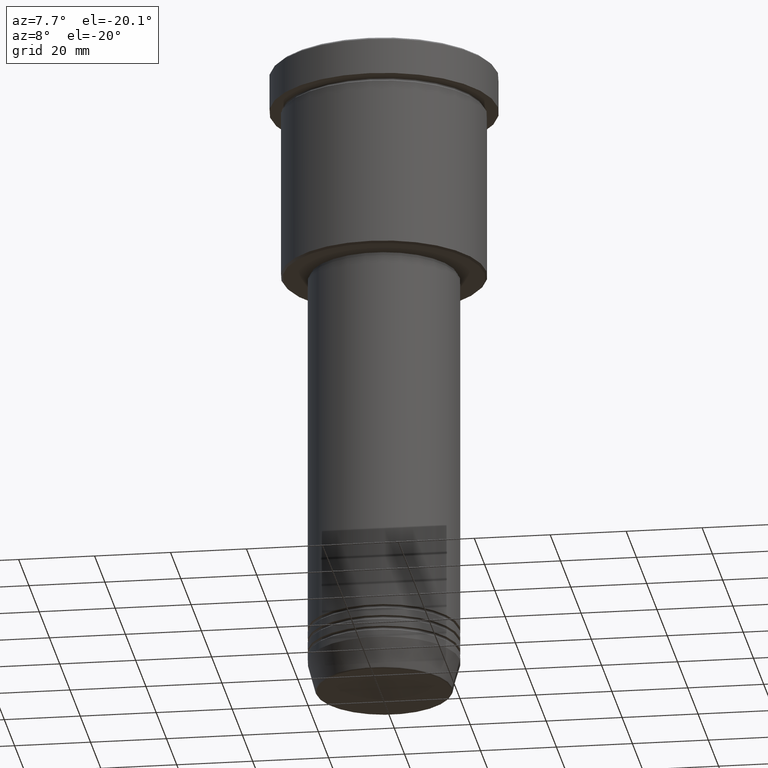
[diagram: clean part render]
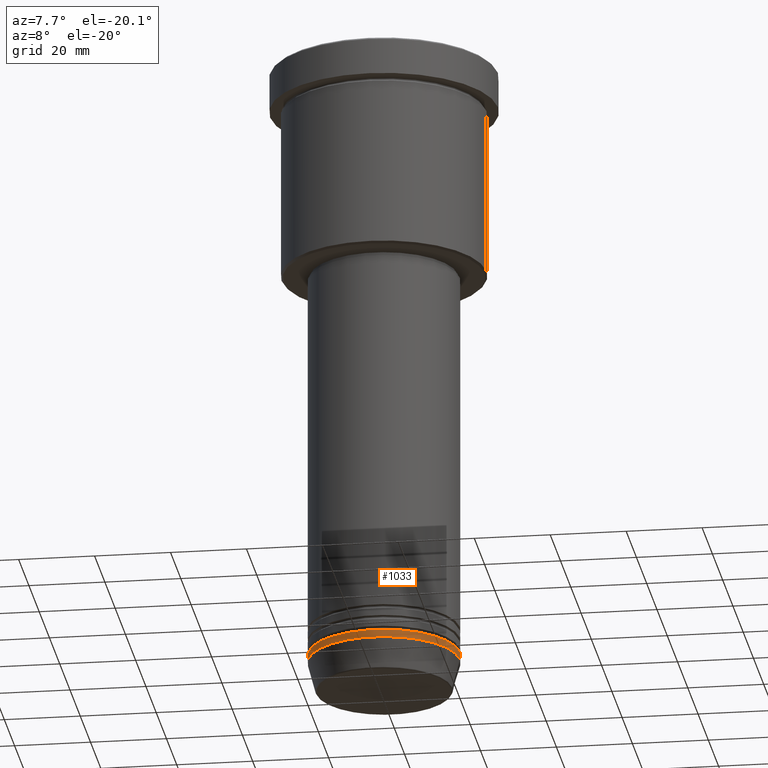
[diagram: same view with one face highlighted and labeled with its STEP entity id]
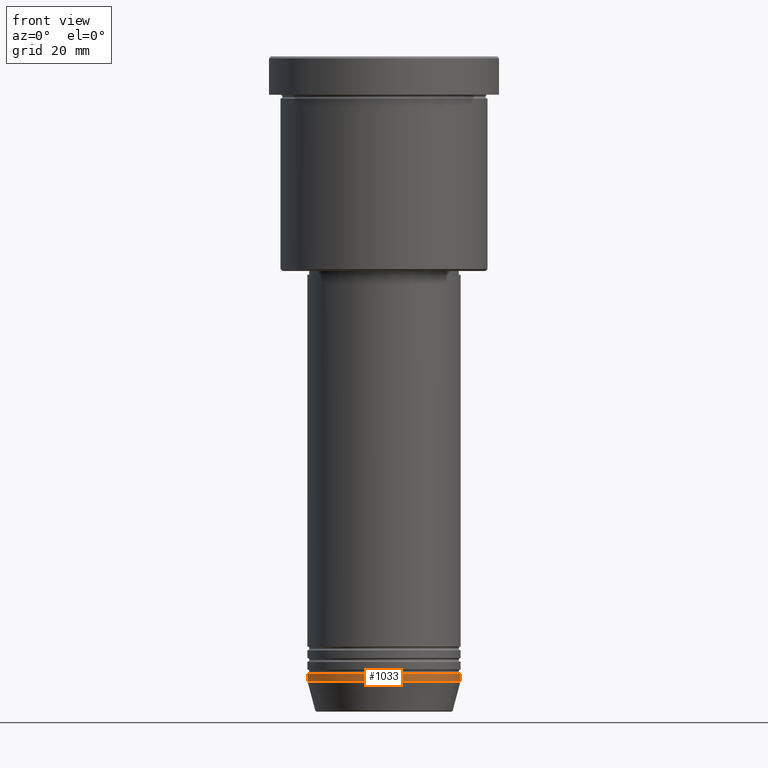
[diagram: same view with one face highlighted and labeled with its STEP entity id]
A machine part, auxiliary view. The second image highlights one B-rep face of the part: STEP entity #1033.
A second angle (front view) of the same face is appended — the face is thin or edge-on in the first view.
In plain terms, the highlighted cylindrical surface (partial cylindrical patch) has radius 20 mm, axis along (-0, -0, 1).
Its self-contained STEP definition (entity closure, byte-faithful):
#9 = DIRECTION ( 'NONE',  ( 1.000000000000000000, 0.000000000000000000, 0.000000000000000000 ) ) ;
#11 = ORIENTED_EDGE ( 'NONE', *, *, #1169, .T. ) ;
#16 = ORIENTED_EDGE ( 'NONE', *, *, #1141, .T. ) ;
#82 = CARTESIAN_POINT ( 'NONE',  ( 0.000000000000000000, 0.000000000000000000, 0.000000000000000000 ) ) ;
#121 = VERTEX_POINT ( 'NONE', #616 ) ;
#262 = DIRECTION ( 'NONE',  ( 1.000000000000000000, 0.000000000000000000, 0.000000000000000000 ) ) ;
#280 = DIRECTION ( 'NONE',  ( -0.000000000000000000, -0.000000000000000000, 1.000000000000000000 ) ) ;
#300 = AXIS2_PLACEMENT_3D ( 'NONE', #626, #280, #1001 ) ;
#314 = DIRECTION ( 'NONE',  ( -0.000000000000000000, -0.000000000000000000, 1.000000000000000000 ) ) ;
#342 = CARTESIAN_POINT ( 'NONE',  ( 20.00000000000000000, 0.000000000000000000, -161.0000000000000000 ) ) ;
#349 = DIRECTION ( 'NONE',  ( -0.000000000000000000, -0.000000000000000000, 1.000000000000000000 ) ) ;
#362 = CYLINDRICAL_SURFACE ( 'NONE', #519, 20.00000000000000000 ) ;
#373 = DIRECTION ( 'NONE',  ( -0.000000000000000000, -0.000000000000000000, 1.000000000000000000 ) ) ;
#380 = EDGE_CURVE ( 'NONE', #577, #414, #622, .T. ) ;
#391 = DIRECTION ( 'NONE',  ( -0.000000000000000000, -0.000000000000000000, 1.000000000000000000 ) ) ;
#414 = VERTEX_POINT ( 'NONE', #342 ) ;
#458 = VECTOR ( 'NONE', #391, 1000.000000000000000 ) ;
#459 = CARTESIAN_POINT ( 'NONE',  ( -20.00000000000000000, 2.449293598294706513E-15, -163.0000000000000000 ) ) ;
#469 = LINE ( 'NONE', #826, #625 ) ;
#519 = AXIS2_PLACEMENT_3D ( 'NONE', #82, #349, #262 ) ;
#558 = FACE_OUTER_BOUND ( 'NONE', #671, .T. ) ;
#577 = VERTEX_POINT ( 'NONE', #1002 ) ;
#616 = CARTESIAN_POINT ( 'NONE',  ( 20.00000000000000000, 0.000000000000000000, -163.0000000000000000 ) ) ;
#622 = CIRCLE ( 'NONE', #679, 20.00000000000000000 ) ;
#625 = VECTOR ( 'NONE', #373, 1000.000000000000000 ) ;
#626 = CARTESIAN_POINT ( 'NONE',  ( 0.000000000000000000, 0.000000000000000000, -163.0000000000000000 ) ) ;
#650 = VERTEX_POINT ( 'NONE', #459 ) ;
#671 = EDGE_LOOP ( 'NONE', ( #765, #16, #11, #930 ) ) ;
#679 = AXIS2_PLACEMENT_3D ( 'NONE', #1127, #314, #9 ) ;
#765 = ORIENTED_EDGE ( 'NONE', *, *, #1122, .F. ) ;
#826 = CARTESIAN_POINT ( 'NONE',  ( -20.00000000000000000, 2.449293598294706513E-15, 0.000000000000000000 ) ) ;
#856 = CARTESIAN_POINT ( 'NONE',  ( 20.00000000000000000, 0.000000000000000000, 0.000000000000000000 ) ) ;
#930 = ORIENTED_EDGE ( 'NONE', *, *, #380, .F. ) ;
#978 = CIRCLE ( 'NONE', #300, 20.00000000000000000 ) ;
#1001 = DIRECTION ( 'NONE',  ( 1.000000000000000000, 0.000000000000000000, 0.000000000000000000 ) ) ;
#1002 = CARTESIAN_POINT ( 'NONE',  ( -20.00000000000000000, 2.449293598294706513E-15, -161.0000000000000000 ) ) ;
#1017 = LINE ( 'NONE', #856, #458 ) ;
#1033 = ADVANCED_FACE ( 'NONE', ( #558 ), #362, .T. ) ;
#1122 = EDGE_CURVE ( 'NONE', #650, #577, #469, .T. ) ;
#1127 = CARTESIAN_POINT ( 'NONE',  ( 0.000000000000000000, 0.000000000000000000, -161.0000000000000000 ) ) ;
#1141 = EDGE_CURVE ( 'NONE', #650, #121, #978, .T. ) ;
#1169 = EDGE_CURVE ( 'NONE', #121, #414, #1017, .T. ) ;